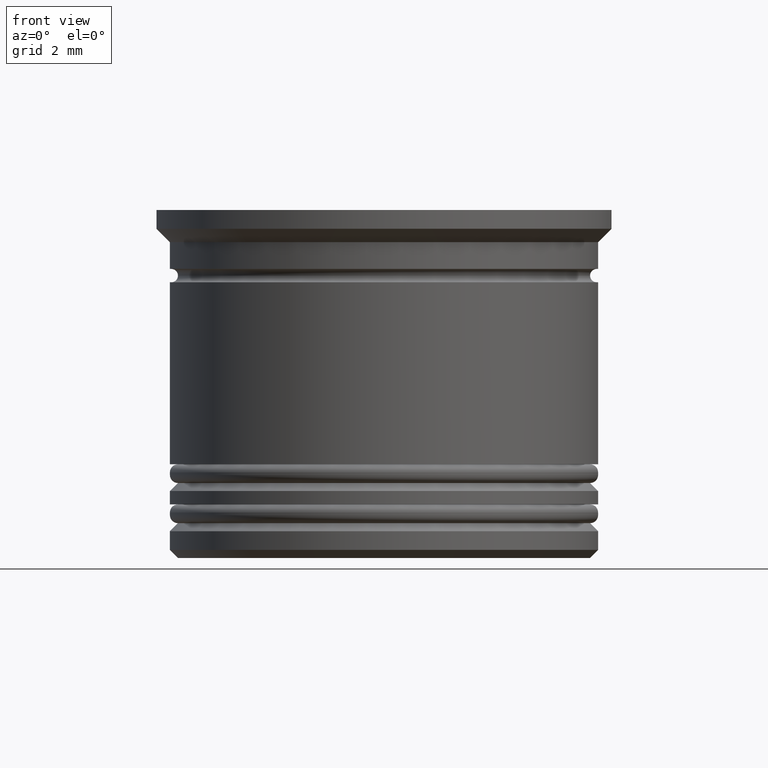
[diagram: clean part render]
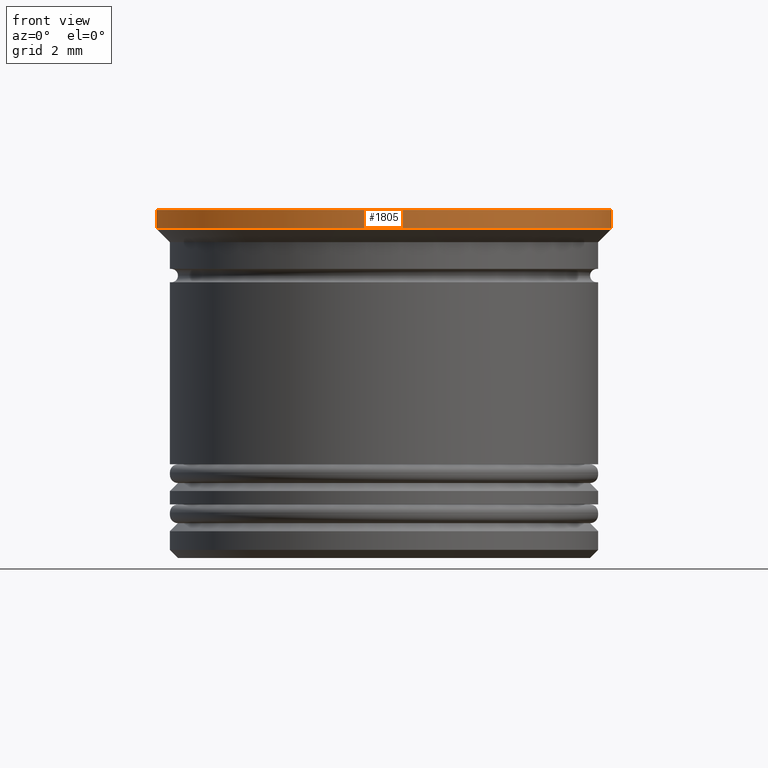
[diagram: same view with one face highlighted and labeled with its STEP entity id]
A machine part, front view. The second image highlights one B-rep face of the part: STEP entity #1805.
In plain terms, the highlighted cylindrical surface (partial cylindrical patch) has radius 8.5 mm, axis along (-0, -0, 1).
Its self-contained STEP definition (entity closure, byte-faithful):
#31 = CARTESIAN_POINT ( 'NONE',  ( -8.500000000000000000, 1.040949779275250140E-15, 0.000000000000000000 ) ) ;
#46 = VERTEX_POINT ( 'NONE', #962 ) ;
#119 = EDGE_CURVE ( 'NONE', #529, #1916, #447, .T. ) ;
#196 = DIRECTION ( 'NONE',  ( -0.000000000000000000, -0.000000000000000000, 1.000000000000000000 ) ) ;
#199 = DIRECTION ( 'NONE',  ( -0.000000000000000000, -0.000000000000000000, 1.000000000000000000 ) ) ;
#214 = VECTOR ( 'NONE', #1867, 1000.000000000000000 ) ;
#242 = CARTESIAN_POINT ( 'NONE',  ( -8.500000000000000000, 1.040949779275250140E-15, 0.000000000000000000 ) ) ;
#266 = DIRECTION ( 'NONE',  ( -0.000000000000000000, -0.000000000000000000, 1.000000000000000000 ) ) ;
#286 = AXIS2_PLACEMENT_3D ( 'NONE', #404, #266, #896 ) ;
#340 = CARTESIAN_POINT ( 'NONE',  ( 0.000000000000000000, 0.000000000000000000, -0.6999999999999952927 ) ) ;
#374 = EDGE_CURVE ( 'NONE', #46, #529, #1425, .T. ) ;
#390 = EDGE_CURVE ( 'NONE', #1746, #1916, #665, .T. ) ;
#404 = CARTESIAN_POINT ( 'NONE',  ( 0.000000000000000000, 0.000000000000000000, 0.000000000000000000 ) ) ;
#408 = EDGE_CURVE ( 'NONE', #46, #1746, #1634, .T. ) ;
#447 = CIRCLE ( 'NONE', #1070, 8.500000000000000000 ) ;
#513 = VECTOR ( 'NONE', #1132, 1000.000000000000000 ) ;
#529 = VERTEX_POINT ( 'NONE', #242 ) ;
#542 = EDGE_LOOP ( 'NONE', ( #973, #660, #1396, #1953 ) ) ;
#571 = CARTESIAN_POINT ( 'NONE',  ( 8.500000000000000000, 0.000000000000000000, -0.6999999999999952927 ) ) ;
#660 = ORIENTED_EDGE ( 'NONE', *, *, #408, .T. ) ;
#665 = LINE ( 'NONE', #1875, #513 ) ;
#847 = DIRECTION ( 'NONE',  ( -1.000000000000000000, 0.000000000000000000, 0.000000000000000000 ) ) ;
#869 = DIRECTION ( 'NONE',  ( 1.000000000000000000, 0.000000000000000000, 0.000000000000000000 ) ) ;
#896 = DIRECTION ( 'NONE',  ( 1.000000000000000000, 0.000000000000000000, 0.000000000000000000 ) ) ;
#962 = CARTESIAN_POINT ( 'NONE',  ( -8.500000000000000000, 1.040949779275250140E-15, -0.6999999999999952927 ) ) ;
#973 = ORIENTED_EDGE ( 'NONE', *, *, #374, .F. ) ;
#1070 = AXIS2_PLACEMENT_3D ( 'NONE', #1901, #199, #869 ) ;
#1132 = DIRECTION ( 'NONE',  ( -0.000000000000000000, -0.000000000000000000, 1.000000000000000000 ) ) ;
#1172 = FACE_OUTER_BOUND ( 'NONE', #542, .T. ) ;
#1396 = ORIENTED_EDGE ( 'NONE', *, *, #390, .T. ) ;
#1425 = LINE ( 'NONE', #31, #214 ) ;
#1510 = AXIS2_PLACEMENT_3D ( 'NONE', #340, #196, #847 ) ;
#1634 = CIRCLE ( 'NONE', #1510, 8.500000000000000000 ) ;
#1643 = CYLINDRICAL_SURFACE ( 'NONE', #286, 8.500000000000000000 ) ;
#1659 = CARTESIAN_POINT ( 'NONE',  ( 8.500000000000000000, 0.000000000000000000, 0.000000000000000000 ) ) ;
#1746 = VERTEX_POINT ( 'NONE', #571 ) ;
#1805 = ADVANCED_FACE ( 'NONE', ( #1172 ), #1643, .T. ) ;
#1867 = DIRECTION ( 'NONE',  ( -0.000000000000000000, -0.000000000000000000, 1.000000000000000000 ) ) ;
#1875 = CARTESIAN_POINT ( 'NONE',  ( 8.500000000000000000, 0.000000000000000000, 0.000000000000000000 ) ) ;
#1901 = CARTESIAN_POINT ( 'NONE',  ( 0.000000000000000000, 0.000000000000000000, 0.000000000000000000 ) ) ;
#1916 = VERTEX_POINT ( 'NONE', #1659 ) ;
#1953 = ORIENTED_EDGE ( 'NONE', *, *, #119, .F. ) ;